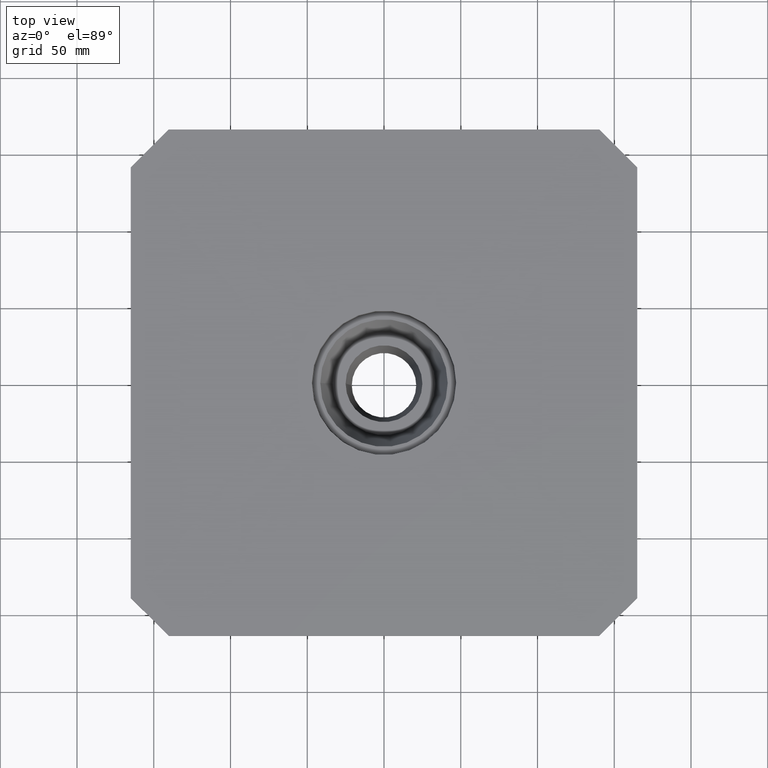
[diagram: clean part render]
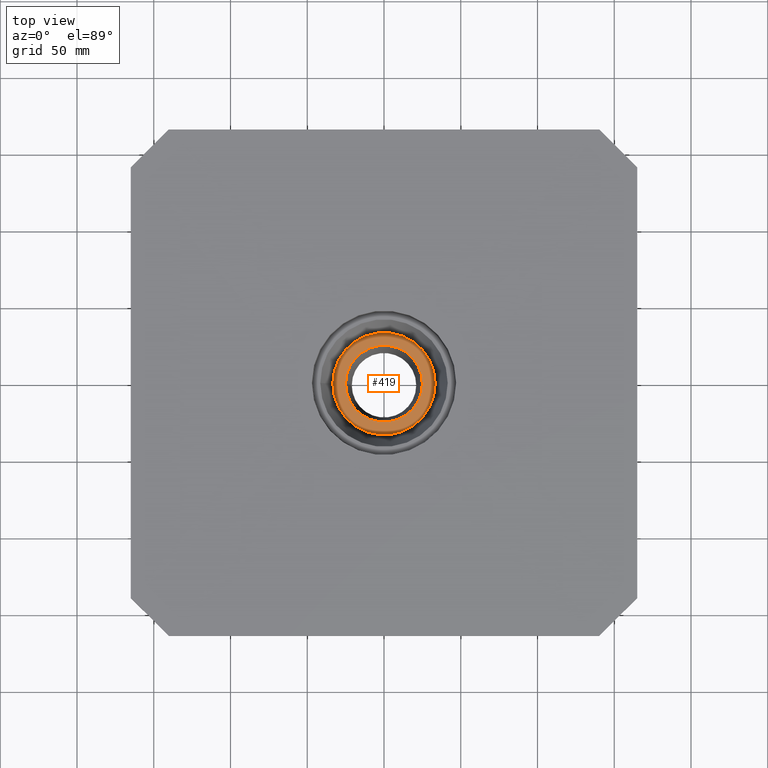
[diagram: same view with one face highlighted and labeled with its STEP entity id]
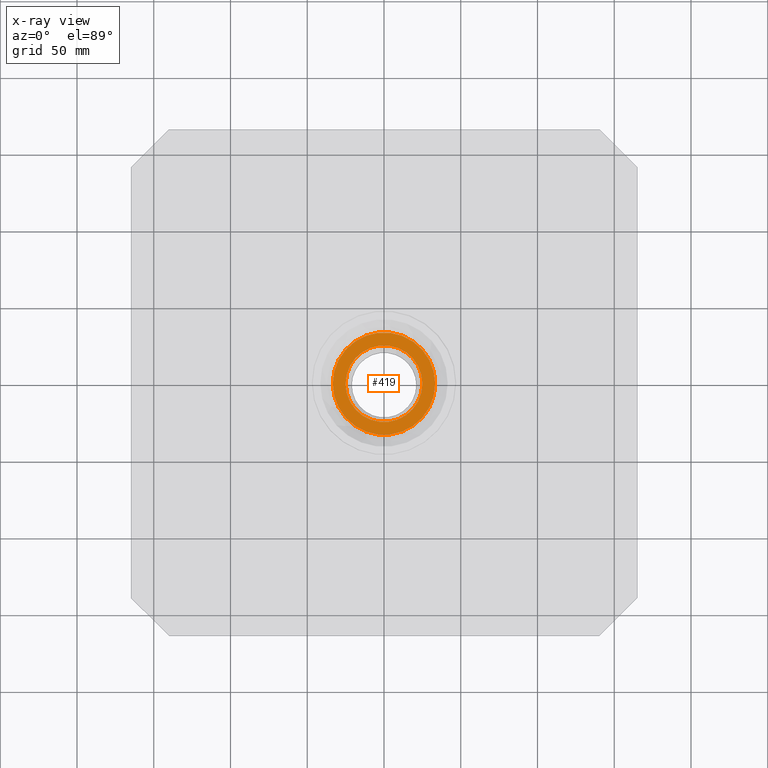
[diagram: x-ray of the same camera — body ghosted, the highlighted face saturated]
A machine part, top view. The second image highlights one B-rep face of the part: STEP entity #419.
The next image is the same camera in x-ray: the body ghosted, the highlighted face saturated — about 0% of this face is hidden behind the body in this view.
In plain terms, the highlighted planar face has unit normal (0, 0, 1).
Its self-contained STEP definition (entity closure, byte-faithful):
#37=CIRCLE('',#470,33.35);
#38=CIRCLE('',#472,25.);
#101=ORIENTED_EDGE('',*,*,#181,.T.);
#102=ORIENTED_EDGE('',*,*,#180,.F.);
#180=EDGE_CURVE('',#218,#218,#37,.T.);
#181=EDGE_CURVE('',#219,#219,#38,.T.);
#218=VERTEX_POINT('',#704);
#219=VERTEX_POINT('',#707);
#301=EDGE_LOOP('',(#101));
#302=EDGE_LOOP('',(#102));
#355=FACE_BOUND('',#301,.T.);
#356=FACE_BOUND('',#302,.T.);
#399=PLANE('',#471);
#419=ADVANCED_FACE('',(#355,#356),#399,.T.);
#470=AXIS2_PLACEMENT_3D('',#703,#570,#571);
#471=AXIS2_PLACEMENT_3D('',#705,#572,#573);
#472=AXIS2_PLACEMENT_3D('',#706,#574,#575);
#570=DIRECTION('',(0.,0.,-1.));
#571=DIRECTION('',(-1.,0.,0.));
#572=DIRECTION('',(0.,0.,1.));
#573=DIRECTION('',(1.,0.,0.));
#574=DIRECTION('',(0.,0.,-1.));
#575=DIRECTION('',(-1.,0.,0.));
#703=CARTESIAN_POINT('',(0.,0.,-34.45));
#704=CARTESIAN_POINT('',(-33.35,0.,-34.45));
#705=CARTESIAN_POINT('',(-33.35,0.,-34.45));
#706=CARTESIAN_POINT('',(0.,0.,-34.45));
#707=CARTESIAN_POINT('',(-25.,0.,-34.45));